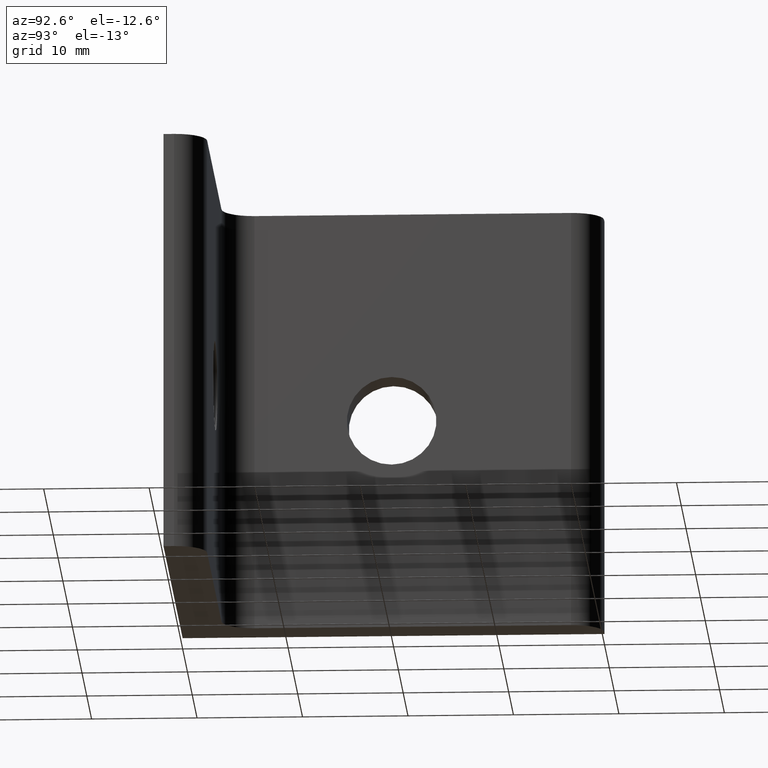
[diagram: clean part render]
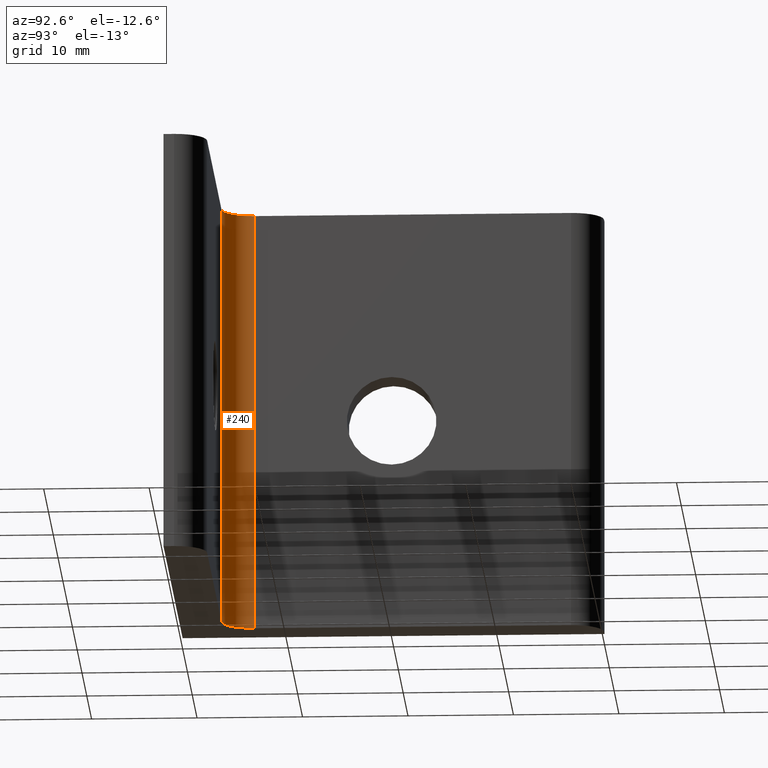
[diagram: same view with one face highlighted and labeled with its STEP entity id]
A machine part, auxiliary view. The second image highlights one B-rep face of the part: STEP entity #240.
In plain terms, the highlighted cylindrical surface (edge-blend (fillet) strip) has radius 3 mm, axis along (0, 0, -1).
Its self-contained STEP definition (entity closure, byte-faithful):
#27=LINE('',#382,#48);
#29=LINE('',#388,#50);
#48=VECTOR('',#311,40.);
#50=VECTOR('',#317,40.);
#78=FACE_OUTER_BOUND('',#96,.T.);
#96=EDGE_LOOP('',(#193,#194,#195,#196));
#109=CIRCLE('',#262,3.);
#110=CIRCLE('',#263,3.);
#127=VERTEX_POINT('',#379);
#128=VERTEX_POINT('',#381);
#129=VERTEX_POINT('',#385);
#130=VERTEX_POINT('',#387);
#153=EDGE_CURVE('',#128,#127,#27,.T.);
#155=EDGE_CURVE('',#127,#129,#109,.T.);
#156=EDGE_CURVE('',#130,#129,#29,.T.);
#157=EDGE_CURVE('',#128,#130,#110,.T.);
#193=ORIENTED_EDGE('',*,*,#155,.T.);
#194=ORIENTED_EDGE('',*,*,#156,.F.);
#195=ORIENTED_EDGE('',*,*,#157,.F.);
#196=ORIENTED_EDGE('',*,*,#153,.T.);
#231=CYLINDRICAL_SURFACE('',#261,3.);
#240=ADVANCED_FACE('',(#78),#231,.F.);
#261=AXIS2_PLACEMENT_3D('',#384,#313,#314);
#262=AXIS2_PLACEMENT_3D('',#386,#315,#316);
#263=AXIS2_PLACEMENT_3D('',#389,#318,#319);
#311=DIRECTION('',(0.,0.,-1.));
#313=DIRECTION('center_axis',(0.,0.,-1.));
#314=DIRECTION('ref_axis',(0.707106781186547,0.707106781186548,0.));
#315=DIRECTION('center_axis',(0.,0.,-1.));
#316=DIRECTION('ref_axis',(1.,0.,0.));
#317=DIRECTION('',(0.,0.,-1.));
#318=DIRECTION('center_axis',(0.,0.,-1.));
#319=DIRECTION('ref_axis',(1.,0.,0.));
#379=CARTESIAN_POINT('',(7.00000000000002,4.,-20.));
#381=CARTESIAN_POINT('',(7.00000000000002,4.,20.));
#382=CARTESIAN_POINT('',(7.00000000000002,4.,20.));
#384=CARTESIAN_POINT('Origin',(7.00000000000003,7.,20.00000001));
#385=CARTESIAN_POINT('',(4.00000000000002,7.,-20.));
#386=CARTESIAN_POINT('Origin',(7.00000000000002,7.,-20.));
#387=CARTESIAN_POINT('',(4.00000000000002,7.,20.));
#388=CARTESIAN_POINT('',(4.00000000000002,7.,20.));
#389=CARTESIAN_POINT('Origin',(7.00000000000002,7.,20.));